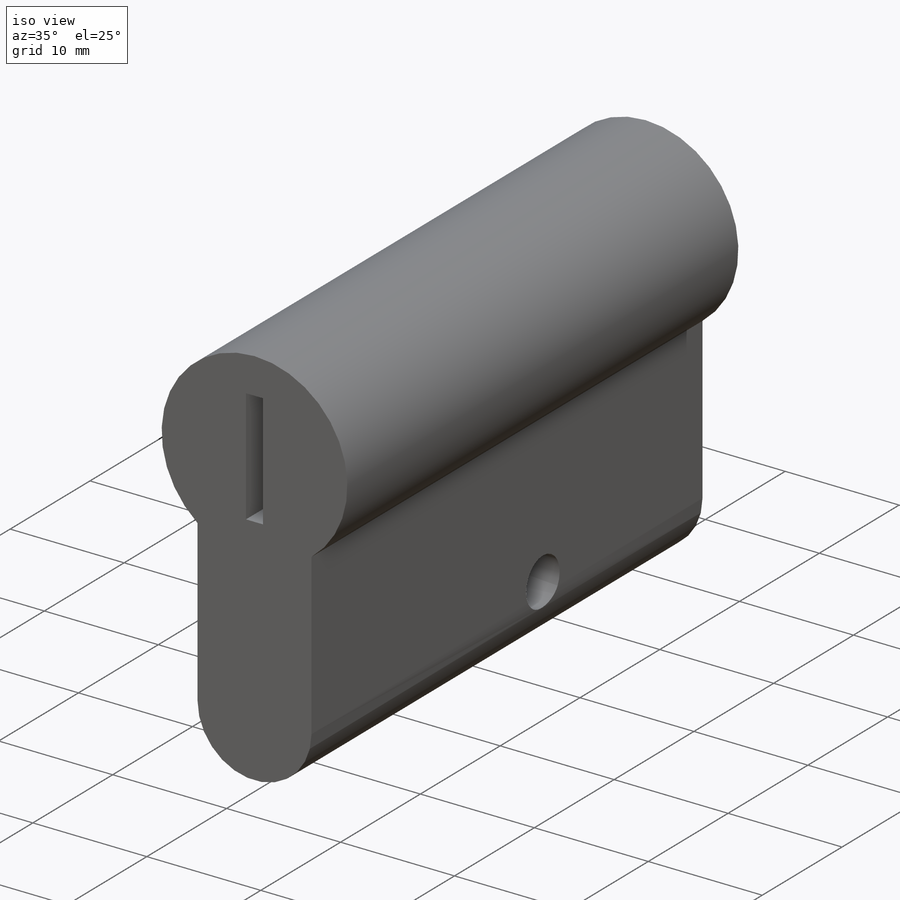
[diagram: iso view]
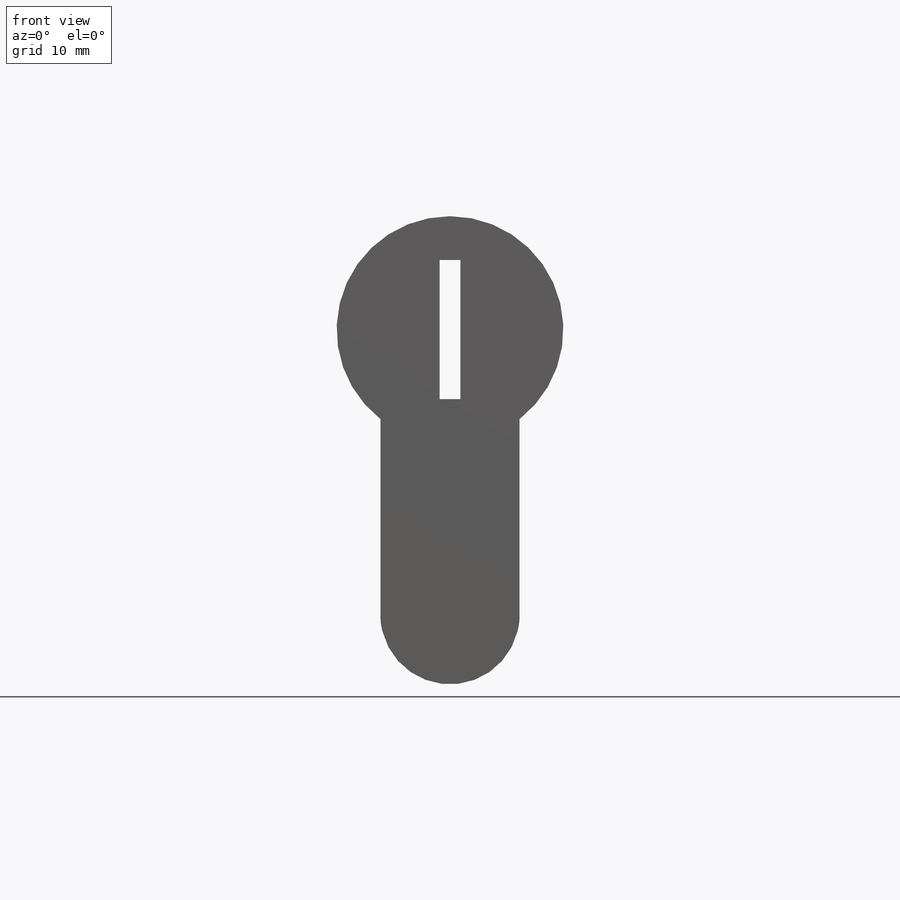
[diagram: front view]
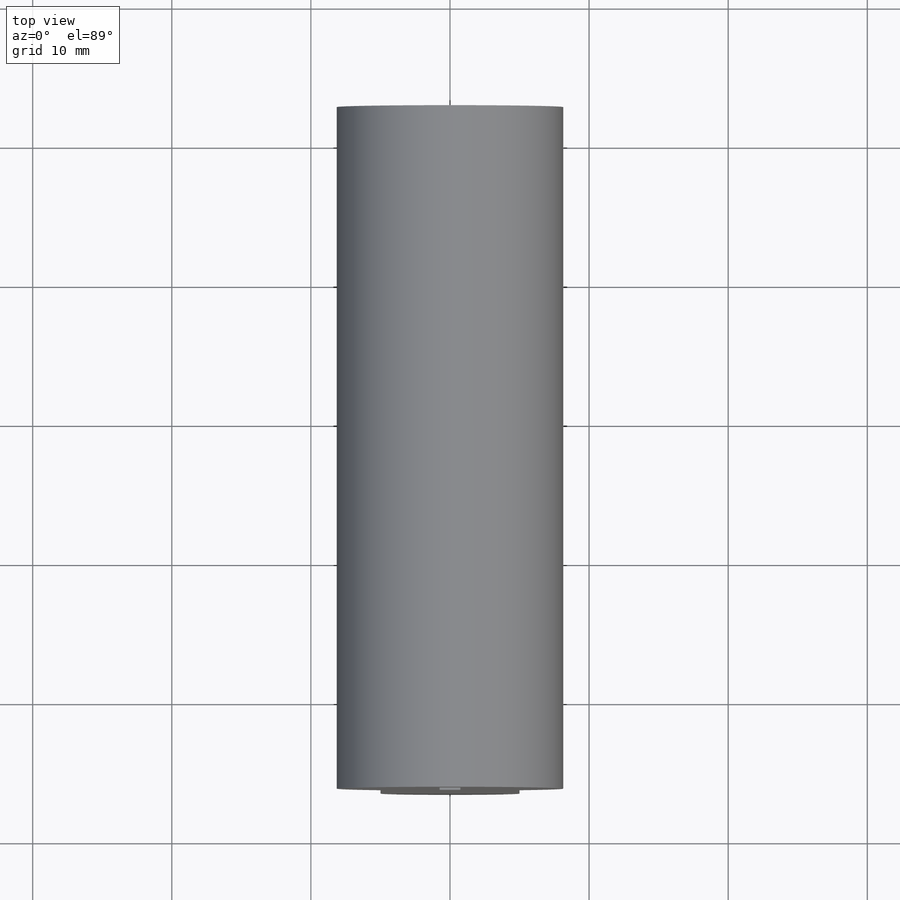
[diagram: top view]
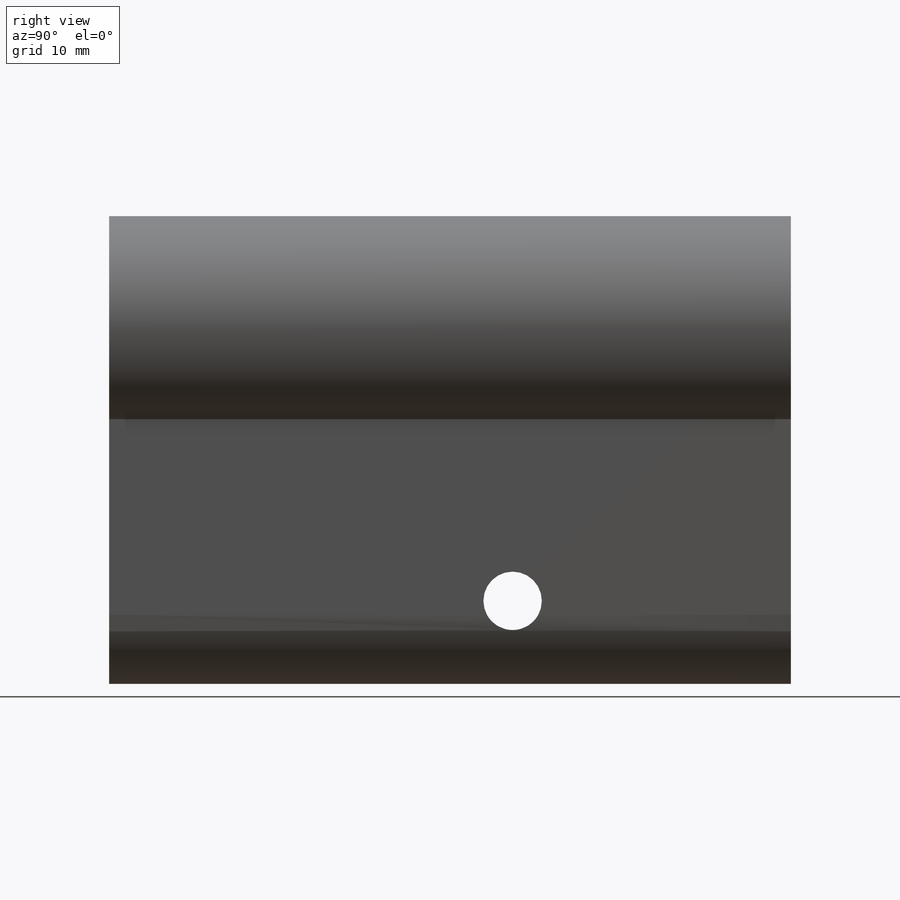
[diagram: right view]
SOLIDWORKS PART (.sldprt)
format: sldprt  version: not decoded by parser v0  size: 194,560 bytes
history: native  units: mm
features: sketch x4, plane x3, material x1, extrude x1, hole x1, thread x1 (+14 scaffold rows collapsed)
feature tree (25):
  scaffold x14  (default folders/planes/origin — collapsed)
  material  "Matériau <non spécifié>"
  plane  "Plan de face"
  plane  "Plan de dessus"
  plane  "Plan de droite"
  sketch  "Esquisse1"  dims[D1=16.3mm D2=1.5mm D3=0.75mm D4=10.0mm D5=5.0mm]
  sketch  "Esquisse2"  dims[D1=0.0mm D2=0.0mm]
  extrude  "Extrusion2"  Depth=9mm
  hole  "Trou taraudé M51"  Diameter=4.2mm Depth=13.15mm
  sketch  "Esquisse3D1"
  sketch  "Esquisse4"  dims[hole-wizard template sketch: 60 standard entries collapsed; hole parameters kept: c18.Profondeur du trou pour taraudage jusqu'au prochain=13.15mm]
  thread  "Filetage de perçage1"  Diameter=5mm  [1 undecoded]
decode coverage: 6 of 7 modeling features carry decoded parameters
note: ~ marks probable driven/reference dimensions
note: 1 parameter value undecoded
note: suppression state not decoded; provenance and decode notes live in map.json
